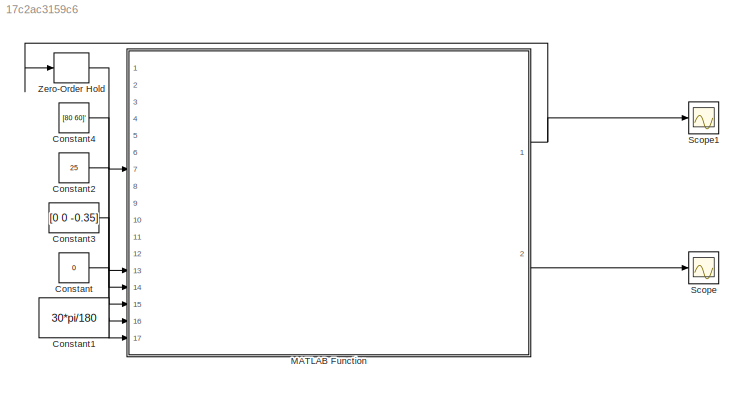
MODEL slx_17c2ac3159c6
KIND model
CONFIG AbsTol = auto
CONFIG EnableMultiTasking = off
CONFIG FixedStep = auto
CONFIG MaxStep = auto
CONFIG MinStep = auto
CONFIG RelTol = 1e-3
CONFIG SampleTimeConstraint = Unconstrained
CONFIG SolverName = VariableStepAuto
CONFIG StartTime = 0.0
CONFIG StopTime = 10.0
BLOCK [Constant] Constant
  Value = 0
BLOCK [Constant] Constant1
  Value = 30*pi/180
BLOCK [Constant] Constant2
  Value = 25
BLOCK [Constant] Constant3
  Value = [0 0 -0.35]
BLOCK [Constant] Constant4
  Value = [80 60]'
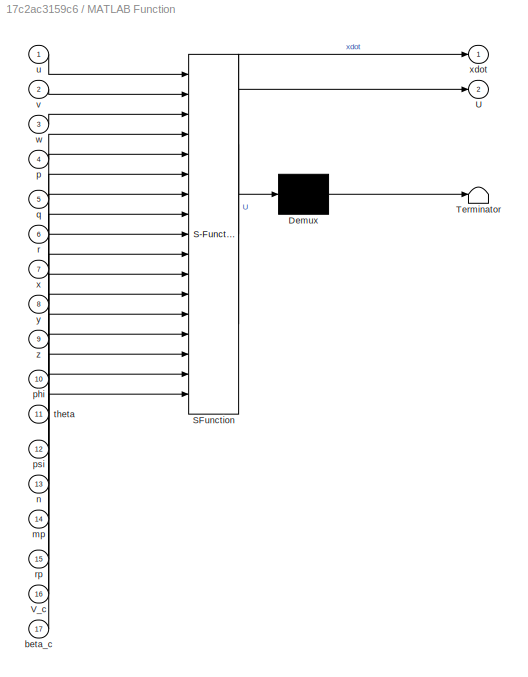
BLOCK [SubSystem] MATLAB Function
  ErrorFcn = Stateflow.Translate.translate
  PermitHierarchicalResolution = ExplicitOnly
  Ports = [17, 2]
  RequestExecContextInheritance = off
  SFBlockType = MATLAB Function
  TreatAsAtomicUnit = on
BLOCK [Demux] MATLAB Function/ Demux 
  Outputs = 1
  Ports = [1, 1]
BLOCK [S-Function] MATLAB Function/ SFunction 
  EnableBusSupport = on
  FunctionName = sf_sfun
  PortCounts = [17 3]
  Ports = [17, 3]
  SFcnIsStateOwnerBlock = off
  SFunctionDeploymentMode = off
  Tag = Stateflow S-Function 2
BLOCK [Terminator] MATLAB Function/ Terminator 
BLOCK [Outport] MATLAB Function/U
  Port = 2
BLOCK [Inport] MATLAB Function/V_c
  Port = 16
BLOCK [Inport] MATLAB Function/beta_c
  Port = 17
BLOCK [Inport] MATLAB Function/mp
  Port = 14
BLOCK [Inport] MATLAB Function/n
  Port = 13
BLOCK [Inport] MATLAB Function/p
  Port = 4
BLOCK [Inport] MATLAB Function/phi
  Port = 10
BLOCK [Inport] MATLAB Function/psi
  Port = 12
BLOCK [Inport] MATLAB Function/q
  Port = 5
BLOCK [Inport] MATLAB Function/r
  Port = 6
BLOCK [Inport] MATLAB Function/rp
  Port = 15
BLOCK [Inport] MATLAB Function/theta
  Port = 11
BLOCK [Inport] MATLAB Function/u
BLOCK [Inport] MATLAB Function/v
  Port = 2
BLOCK [Inport] MATLAB Function/w
  Port = 3
BLOCK [Inport] MATLAB Function/x
  Port = 7
BLOCK [Outport] MATLAB Function/xdot
BLOCK [Inport] MATLAB Function/y
  Port = 8
BLOCK [Inport] MATLAB Function/z
  Port = 9
BLOCK [Scope] Scope
  Floating = off
  NumInputPorts = 1
  Ports = [1]
  ScopeSpecificationString = Simulink.scopes.TimeScopeBlockCfg('CurrentConfiguration', extmgr.ConfigurationSet(extmgr.Configuration('Core','General UI',true),extmgr.Configuration('Core','Source UI',true),extmgr.Configuration('Sources','WiredSimulink',true),extmgr.Configuration('Visuals','Time Domain',true),extmgr.Configuration('Tools','Plot Navigation',true),extmgr.Configuration('Tools','Measurements',true)),'Version','2021a'...<+1ch>
BLOCK [Scope] Scope1
  Floating = off
  NumInputPorts = 1
  Ports = [1]
  ScopeSpecificationString = Simulink.scopes.TimeScopeBlockCfg('CurrentConfiguration', extmgr.ConfigurationSet(extmgr.Configuration('Core','General UI',true),extmgr.Configuration('Core','Source UI',true),extmgr.Configuration('Sources','WiredSimulink',true,'DataLoggingVariableName','ScopeData1'),extmgr.Configuration('Visuals','Time Domain',true),extmgr.Configuration('Tools','Plot Navigation',true),extmgr.Configuration('Tools',...<+40ch>
BLOCK [ZeroOrderHold] Zero-Order Hold
  SampleTime = 0.002
LINE Constant1:1 -> MATLAB Function:17
LINE Constant2:1 -> MATLAB Function:14
LINE Constant3:1 -> MATLAB Function:15
LINE Constant4:1 -> MATLAB Function:13
LINE Constant:1 -> MATLAB Function:16
NET MATLAB Function:1 -> Scope1:1, Zero-Order Hold:1
LINE MATLAB Function:2 -> Scope:1
LINE Zero-Order Hold:1 -> MATLAB Function:7
note: NET lines group one-source signal fan-out (src -> all destinations, sorted); 1:1 wires keep LINE
CHART MATLAB Function states=1 transitions=1
  STATE_LABEL 'eML_blk_kernel()'
  STATE_LABEL "SCRIPT:\nfunction [xdot,U] = otter(u, v, w, p, q, r, x, y, z, phi, theta, psi,n,mp,rp,V_c,beta_c)\n% [xdot,U] = otter(x,n,mp,rp,V_c,beta_c) returns the speed U in m/s (optionally) \n% and the time derivative of the state vector: \nx = [ u v w p q r x y z phi theta psi ]';\n% for the Maritime Robotics Otter USV, see www.maritimerobotics.com. \n% The length of the USV is L = 2.0 m, while the state vector ...<+3608ch>"
CHART  states=0 transitions=0
